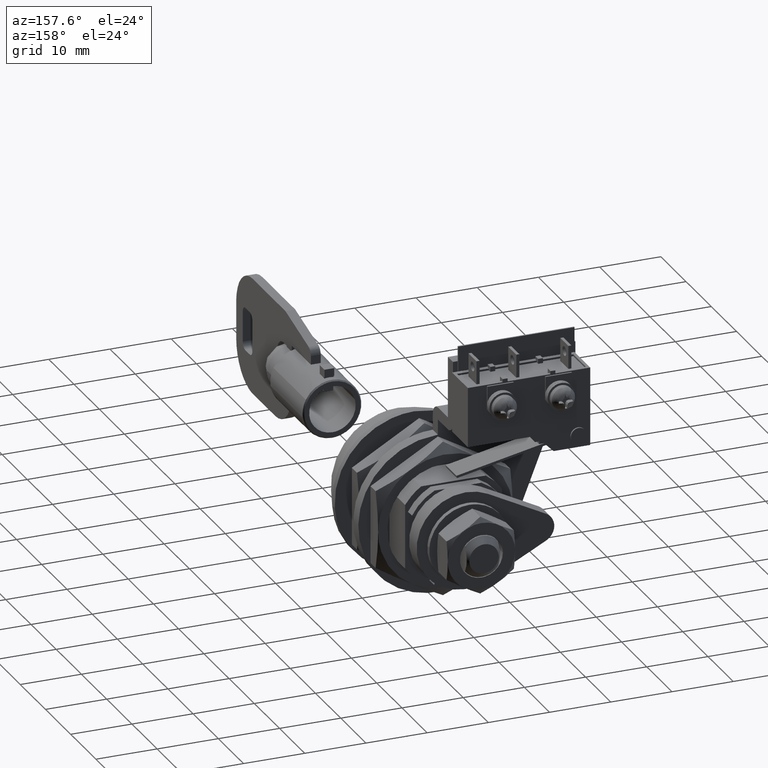
[diagram: clean part render]
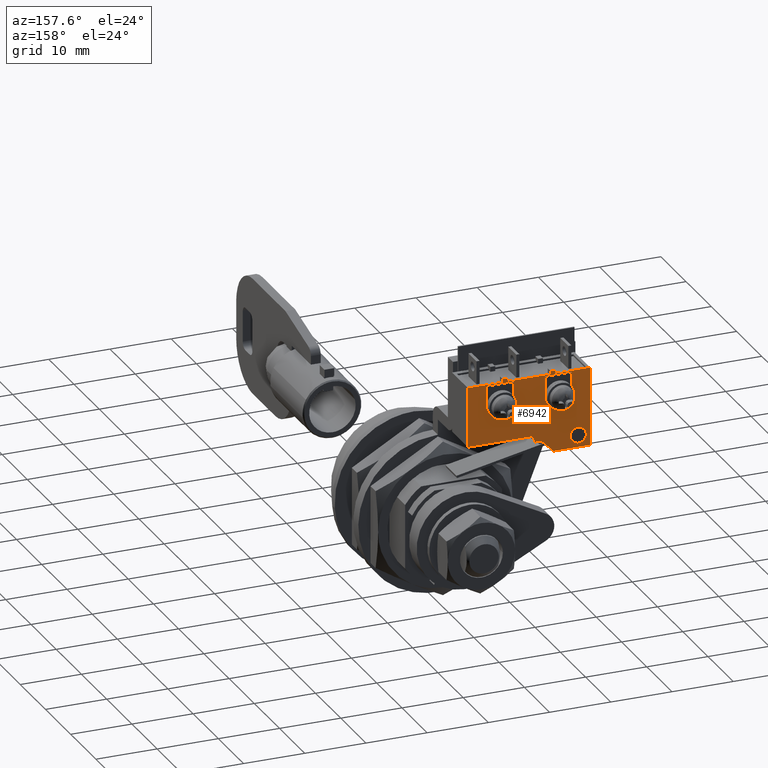
[diagram: same view with one face highlighted and labeled with its STEP entity id]
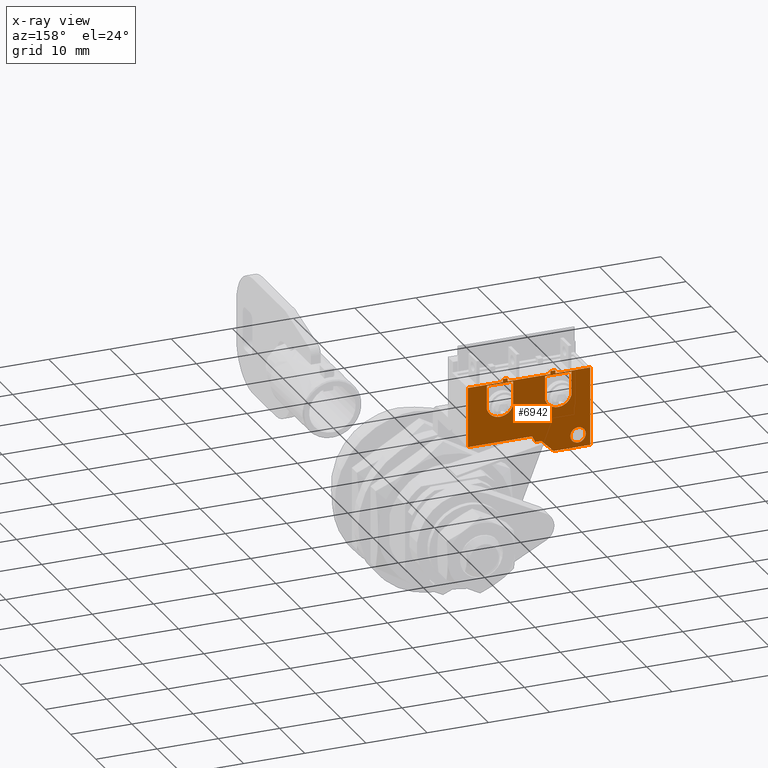
[diagram: x-ray of the same camera — body ghosted, the highlighted face saturated]
A machine part, auxiliary view. The second image highlights one B-rep face of the part: STEP entity #6942.
The next image is the same camera in x-ray: the body ghosted, the highlighted face saturated — about 0% of this face is hidden behind the body in this view.
In plain terms, the highlighted face is a freeform B-spline surface patch.
Its self-contained STEP definition (entity closure, byte-faithful):
#4171=CARTESIAN_POINT('',(28.199994000000199,16.503853332892142,15.198063870403709));
#4172=VERTEX_POINT('',#4171);
#4178=CARTESIAN_POINT('',(28.199994000000199,17.750000000000000,13.849990000000000));
#4179=VERTEX_POINT('',#4178);
#4180=CARTESIAN_POINT('',(28.199994000000203,16.503853332892135,15.198063870403713));
#4181=CARTESIAN_POINT('',(28.199994000000192,16.499999999999993,15.149102634506940));
#4182=CARTESIAN_POINT('',(28.199994000000199,16.500000000000000,15.099990000000000));
#4183=CARTESIAN_POINT('',(28.199994000000206,16.499999999999993,13.849990000000004));
#4184=CARTESIAN_POINT('',(28.199994000000199,17.750000000000000,13.849990000000000));
#4192=(BOUNDED_CURVE()B_SPLINE_CURVE(2,(#4180,#4181,#4182,#4183,#4184),.UNSPECIFIED.,.F.,.U.)B_SPLINE_CURVE_WITH_KNOTS((3,2,3),(0.736331300428100,0.750000000000000,1.0),.UNSPECIFIED.)CURVE()GEOMETRIC_REPRESENTATION_ITEM()RATIONAL_B_SPLINE_CURVE((0.969723355744691,0.983986122341568,1.0,0.707106781186548,1.0))REPRESENTATION_ITEM(''));
#4193=EDGE_CURVE('',#4172,#4179,#4192,.T.);
#4195=CARTESIAN_POINT('',(28.199994000000199,18.996146667107869,15.001916129596291));
#4196=VERTEX_POINT('',#4195);
#4197=CARTESIAN_POINT('',(28.199994000000199,17.750000000000000,13.849990000000000));
#4198=CARTESIAN_POINT('',(28.199994000000199,18.905488113188923,13.849990000000007));
#4199=CARTESIAN_POINT('',(28.199994000000203,18.996146667107865,15.001916129596294));
#4207=(BOUNDED_CURVE()B_SPLINE_CURVE(2,(#4197,#4198,#4199),.UNSPECIFIED.,.F.,.U.)B_SPLINE_CURVE_WITH_KNOTS((3,3),(0.0,0.236331300428100),.UNSPECIFIED.)CURVE()GEOMETRIC_REPRESENTATION_ITEM()RATIONAL_B_SPLINE_CURVE((1.0,0.723120658844979,0.969723355744691))REPRESENTATION_ITEM(''));
#4208=EDGE_CURVE('',#4179,#4196,#4207,.T.);
#4254=CARTESIAN_POINT('',(28.199994000000199,17.750000000000000,16.349989999999998));
#4255=VERTEX_POINT('',#4254);
#4256=CARTESIAN_POINT('',(28.199994000000199,18.996146667107869,15.001916129596296));
#4257=CARTESIAN_POINT('',(28.199994000000206,19.000000000000007,15.050877365493058));
#4258=CARTESIAN_POINT('',(28.199994000000199,19.0,15.099990000000000));
#4259=CARTESIAN_POINT('',(28.199994000000206,18.999999999999993,16.349989999999998));
#4260=CARTESIAN_POINT('',(28.199994000000199,17.750000000000000,16.349989999999998));
#4268=(BOUNDED_CURVE()B_SPLINE_CURVE(2,(#4256,#4257,#4258,#4259,#4260),.UNSPECIFIED.,.F.,.U.)B_SPLINE_CURVE_WITH_KNOTS((3,2,3),(0.236331300428100,0.250000000000000,0.500000000000000),.UNSPECIFIED.)CURVE()GEOMETRIC_REPRESENTATION_ITEM()RATIONAL_B_SPLINE_CURVE((0.969723355744690,0.983986122341568,1.0,0.707106781186548,1.0))REPRESENTATION_ITEM(''));
#4269=EDGE_CURVE('',#4196,#4255,#4268,.T.);
#4271=CARTESIAN_POINT('',(28.199994000000199,17.750000000000000,16.349989999999998));
#4272=CARTESIAN_POINT('',(28.199994000000196,16.594511886811066,16.349990000000009));
#4273=CARTESIAN_POINT('',(28.199994000000196,16.503853332892135,15.198063870403706));
#4281=(BOUNDED_CURVE()B_SPLINE_CURVE(2,(#4271,#4272,#4273),.UNSPECIFIED.,.F.,.U.)B_SPLINE_CURVE_WITH_KNOTS((3,3),(0.500000000000000,0.736331300428099),.UNSPECIFIED.)CURVE()GEOMETRIC_REPRESENTATION_ITEM()RATIONAL_B_SPLINE_CURVE((1.0,0.723120658844981,0.969723355744688))REPRESENTATION_ITEM(''));
#4282=EDGE_CURVE('',#4255,#4172,#4281,.T.);
#4917=CARTESIAN_POINT('',(28.199994000000100,7.149993999999910,21.836594594759351));
#4918=VERTEX_POINT('',#4917);
#4924=CARTESIAN_POINT('',(28.199994000000050,7.149993999999910,25.699997000000099));
#4925=VERTEX_POINT('',#4924);
#4926=CARTESIAN_POINT('',(28.199994000000100,7.149993999999910,21.836594594759351));
#4927=CARTESIAN_POINT('',(28.199994000000050,7.149993999999910,25.699997000000099));
#4928=QUASI_UNIFORM_CURVE('',1,(#4926,#4927),.UNSPECIFIED.,.F.,.U.);
#4929=EDGE_CURVE('',#4918,#4925,#4928,.T.);
#4958=CARTESIAN_POINT('',(28.199994000000050,2.850005999999895,21.836594594759450));
#4959=VERTEX_POINT('',#4958);
#4965=CARTESIAN_POINT('',(28.199994000000050,2.850005999999905,21.836594594759450));
#4966=CARTESIAN_POINT('',(28.199994000000054,3.339541836763770,20.249939000000005));
#4967=CARTESIAN_POINT('',(28.199994000000050,4.999999999999920,20.249939000000001));
#4968=CARTESIAN_POINT('',(28.199994000000054,6.660458163235989,20.249939000000005));
#4969=CARTESIAN_POINT('',(28.199994000000050,7.149993999999904,21.836594594759351));
#4977=(BOUNDED_CURVE()B_SPLINE_CURVE(2,(#4965,#4966,#4967,#4968,#4969),.UNSPECIFIED.,.F.,.U.)B_SPLINE_CURVE_WITH_KNOTS((3,2,3),(0.0,0.500000000000000,1.0),.UNSPECIFIED.)CURVE()GEOMETRIC_REPRESENTATION_ITEM()RATIONAL_B_SPLINE_CURVE((1.0,0.804617839617811,1.0,0.804617839617811,1.0))REPRESENTATION_ITEM(''));
#4978=EDGE_CURVE('',#4959,#4918,#4977,.T.);
#4990=CARTESIAN_POINT('',(28.199994000000100,2.850005999999895,25.699997000000099));
#4991=VERTEX_POINT('',#4990);
#4997=CARTESIAN_POINT('',(28.199994000000100,2.850005999999895,25.699997000000099));
#4998=CARTESIAN_POINT('',(28.199994000000050,2.850005999999895,21.836594594759450));
#4999=QUASI_UNIFORM_CURVE('',1,(#4997,#4998),.UNSPECIFIED.,.F.,.U.);
#5000=EDGE_CURVE('',#4991,#4959,#4999,.T.);
#5013=CARTESIAN_POINT('',(28.199994000000050,7.149993999999910,25.699997000000099));
#5014=CARTESIAN_POINT('',(28.199994000000100,2.850005999999895,25.699997000000099));
#5015=QUASI_UNIFORM_CURVE('',1,(#5013,#5014),.UNSPECIFIED.,.F.,.U.);
#5016=EDGE_CURVE('',#4925,#4991,#5015,.T.);
#5080=CARTESIAN_POINT('',(28.199994000000100,16.649993999999900,21.836594594759049));
#5081=VERTEX_POINT('',#5080);
#5087=CARTESIAN_POINT('',(28.199994000000050,16.649993999999900,25.699997000000099));
#5088=VERTEX_POINT('',#5087);
#5089=CARTESIAN_POINT('',(28.199994000000100,16.649993999999900,21.836594594759049));
#5090=CARTESIAN_POINT('',(28.199994000000050,16.649993999999900,25.699997000000099));
#5091=QUASI_UNIFORM_CURVE('',1,(#5089,#5090),.UNSPECIFIED.,.F.,.U.);
#5092=EDGE_CURVE('',#5081,#5088,#5091,.T.);
#5121=CARTESIAN_POINT('',(28.199994000000050,12.350006000000000,21.836594594759351));
#5122=VERTEX_POINT('',#5121);
#5128=CARTESIAN_POINT('',(28.199994000000050,12.350006000000020,21.836594594759362));
#5129=CARTESIAN_POINT('',(28.199994000000046,12.839541836763932,20.249939000000005));
#5130=CARTESIAN_POINT('',(28.199994000000050,14.500000000000000,20.249939000000001));
#5131=CARTESIAN_POINT('',(28.199994000000046,16.160458163235830,20.249939000000005));
#5132=CARTESIAN_POINT('',(28.199994000000050,16.649993999999889,21.836594594759049));
#5140=(BOUNDED_CURVE()B_SPLINE_CURVE(2,(#5128,#5129,#5130,#5131,#5132),.UNSPECIFIED.,.F.,.U.)B_SPLINE_CURVE_WITH_KNOTS((3,2,3),(0.0,0.500000000000000,1.0),.UNSPECIFIED.)CURVE()GEOMETRIC_REPRESENTATION_ITEM()RATIONAL_B_SPLINE_CURVE((1.0,0.804617839617824,1.0,0.804617839617824,1.0))REPRESENTATION_ITEM(''));
#5141=EDGE_CURVE('',#5122,#5081,#5140,.T.);
#5153=CARTESIAN_POINT('',(28.199994000000100,12.350006000000000,25.699997000000099));
#5154=VERTEX_POINT('',#5153);
#5160=CARTESIAN_POINT('',(28.199994000000100,12.350006000000000,25.699997000000099));
#5161=CARTESIAN_POINT('',(28.199994000000050,12.350006000000000,21.836594594759351));
#5162=QUASI_UNIFORM_CURVE('',1,(#5160,#5161),.UNSPECIFIED.,.F.,.U.);
#5163=EDGE_CURVE('',#5154,#5122,#5162,.T.);
#5176=CARTESIAN_POINT('',(28.199994000000050,16.649993999999900,25.699997000000099));
#5177=CARTESIAN_POINT('',(28.199994000000100,12.350006000000000,25.699997000000099));
#5178=QUASI_UNIFORM_CURVE('',1,(#5176,#5177),.UNSPECIFIED.,.F.,.U.);
#5179=EDGE_CURVE('',#5088,#5154,#5178,.T.);
#5982=CARTESIAN_POINT('',(28.199994000000100,13.250000000000000,26.399992999999998));
#5983=VERTEX_POINT('',#5982);
#5989=CARTESIAN_POINT('',(28.199994000000100,14.050017999999939,26.399992999999998));
#5990=VERTEX_POINT('',#5989);
#5991=CARTESIAN_POINT('',(28.199994000000100,14.050017999999939,26.399992999999998));
#5992=CARTESIAN_POINT('',(28.199994000000100,13.250000000000000,26.399992999999998));
#5993=QUASI_UNIFORM_CURVE('',1,(#5991,#5992),.UNSPECIFIED.,.F.,.U.);
#5994=EDGE_CURVE('',#5990,#5983,#5993,.T.);
#6019=CARTESIAN_POINT('',(28.199994000000100,13.250000000000000,25.899993000000102));
#6020=VERTEX_POINT('',#6019);
#6026=CARTESIAN_POINT('',(28.199994000000100,13.250000000000000,26.399992999999998));
#6027=CARTESIAN_POINT('',(28.199994000000100,13.250000000000000,25.899993000000102));
#6028=QUASI_UNIFORM_CURVE('',1,(#6026,#6027),.UNSPECIFIED.,.F.,.U.);
#6029=EDGE_CURVE('',#5983,#6020,#6028,.T.);
#6048=CARTESIAN_POINT('',(28.199994000000100,14.050017999999939,25.899993000000102));
#6049=VERTEX_POINT('',#6048);
#6069=CARTESIAN_POINT('',(28.199994000000100,14.050017999999939,26.399992999999998));
#6070=CARTESIAN_POINT('',(28.199994000000100,14.050017999999939,25.899993000000102));
#6071=QUASI_UNIFORM_CURVE('',1,(#6069,#6070),.UNSPECIFIED.,.F.,.U.);
#6072=EDGE_CURVE('',#5990,#6049,#6071,.T.);
#6270=CARTESIAN_POINT('',(28.199994000000100,5.449982000000000,26.399992999999998));
#6271=VERTEX_POINT('',#6270);
#6277=CARTESIAN_POINT('',(28.199994000000100,6.250000000000000,26.399992999999998));
#6278=VERTEX_POINT('',#6277);
#6279=CARTESIAN_POINT('',(28.199994000000100,6.250000000000000,26.399992999999998));
#6280=CARTESIAN_POINT('',(28.199994000000100,5.449982000000000,26.399992999999998));
#6281=QUASI_UNIFORM_CURVE('',1,(#6279,#6280),.UNSPECIFIED.,.F.,.U.);
#6282=EDGE_CURVE('',#6278,#6271,#6281,.T.);
#6307=CARTESIAN_POINT('',(28.199994000000050,5.449982000000000,25.899993000000102));
#6308=VERTEX_POINT('',#6307);
#6314=CARTESIAN_POINT('',(28.199994000000100,5.449982000000000,26.399992999999998));
#6315=CARTESIAN_POINT('',(28.199994000000050,5.449982000000000,25.899993000000102));
#6316=QUASI_UNIFORM_CURVE('',1,(#6314,#6315),.UNSPECIFIED.,.F.,.U.);
#6317=EDGE_CURVE('',#6271,#6308,#6316,.T.);
#6336=CARTESIAN_POINT('',(28.199994000000050,6.250000000000000,25.899993000000102));
#6337=VERTEX_POINT('',#6336);
#6357=CARTESIAN_POINT('',(28.199994000000100,6.250000000000000,26.399992999999998));
#6358=CARTESIAN_POINT('',(28.199994000000050,6.250000000000000,25.899993000000102));
#6359=QUASI_UNIFORM_CURVE('',1,(#6357,#6358),.UNSPECIFIED.,.F.,.U.);
#6360=EDGE_CURVE('',#6278,#6337,#6359,.T.);
#6559=CARTESIAN_POINT('',(28.199994000000050,19.750000000000000,25.899993000000102));
#6560=VERTEX_POINT('',#6559);
#6566=CARTESIAN_POINT('',(28.199994000000050,19.750000000000000,13.099990000000000));
#6567=VERTEX_POINT('',#6566);
#6568=CARTESIAN_POINT('',(28.199994000000050,19.750000000000000,13.099990000000000));
#6569=CARTESIAN_POINT('',(28.199994000000050,19.750000000000000,25.899993000000102));
#6570=QUASI_UNIFORM_CURVE('',1,(#6568,#6569),.UNSPECIFIED.,.F.,.U.);
#6571=EDGE_CURVE('',#6567,#6560,#6570,.T.);
#6588=CARTESIAN_POINT('',(28.199994000000050,13.750047000248101,13.099990000000000));
#6589=VERTEX_POINT('',#6588);
#6590=CARTESIAN_POINT('',(28.199994000000050,13.750047000248101,13.099990000000000));
#6591=CARTESIAN_POINT('',(28.199994000000050,19.750000000000000,13.099990000000000));
#6592=QUASI_UNIFORM_CURVE('',1,(#6590,#6591),.UNSPECIFIED.,.F.,.U.);
#6593=EDGE_CURVE('',#6589,#6567,#6592,.T.);
#6614=CARTESIAN_POINT('',(28.199994000000050,11.750016000248120,15.099990000000000));
#6615=VERTEX_POINT('',#6614);
#6621=CARTESIAN_POINT('',(28.199994000000050,10.750000000000000,15.099990000000000));
#6622=VERTEX_POINT('',#6621);
#6623=CARTESIAN_POINT('',(28.199994000000050,10.750000000000000,15.099990000000000));
#6624=CARTESIAN_POINT('',(28.199994000000050,11.750016000248120,15.099990000000000));
#6625=QUASI_UNIFORM_CURVE('',1,(#6623,#6624),.UNSPECIFIED.,.F.,.U.);
#6626=EDGE_CURVE('',#6622,#6615,#6625,.T.);
#6644=CARTESIAN_POINT('',(28.199994000000050,10.250000000000000,16.099989999999998));
#6645=VERTEX_POINT('',#6644);
#6646=CARTESIAN_POINT('',(28.199994000000050,10.250000000000000,16.099989999999998));
#6647=CARTESIAN_POINT('',(28.199994000000050,10.750000000000000,15.099990000000000));
#6648=QUASI_UNIFORM_CURVE('',1,(#6646,#6647),.UNSPECIFIED.,.F.,.U.);
#6649=EDGE_CURVE('',#6645,#6622,#6648,.T.);
#6666=CARTESIAN_POINT('',(28.199994000000050,-0.250000000000000,16.099989999999998));
#6667=VERTEX_POINT('',#6666);
#6668=CARTESIAN_POINT('',(28.199994000000050,-0.250000000000000,16.099989999999998));
#6669=CARTESIAN_POINT('',(28.199994000000050,10.250000000000000,16.099989999999998));
#6670=QUASI_UNIFORM_CURVE('',1,(#6668,#6669),.UNSPECIFIED.,.F.,.U.);
#6671=EDGE_CURVE('',#6667,#6645,#6670,.T.);
#6688=CARTESIAN_POINT('',(28.199994000000050,-0.250000000000000,25.899993000000102));
#6689=VERTEX_POINT('',#6688);
#6690=CARTESIAN_POINT('',(28.199994000000050,-0.250000000000000,25.899993000000102));
#6691=CARTESIAN_POINT('',(28.199994000000050,-0.250000000000000,16.099989999999998));
#6692=QUASI_UNIFORM_CURVE('',1,(#6690,#6691),.UNSPECIFIED.,.F.,.U.);
#6693=EDGE_CURVE('',#6689,#6667,#6692,.T.);
#6771=CARTESIAN_POINT('',(28.199994000000100,13.250000000000000,25.899993000000102));
#6772=CARTESIAN_POINT('',(28.199994000000050,6.250000000000000,25.899993000000102));
#6773=QUASI_UNIFORM_CURVE('',1,(#6771,#6772),.UNSPECIFIED.,.F.,.U.);
#6774=EDGE_CURVE('',#6020,#6337,#6773,.T.);
#6809=CARTESIAN_POINT('',(28.199994000000050,19.750000000000000,25.899993000000102));
#6810=CARTESIAN_POINT('',(28.199994000000100,14.050017999999939,25.899993000000102));
#6811=QUASI_UNIFORM_CURVE('',1,(#6809,#6810),.UNSPECIFIED.,.F.,.U.);
#6812=EDGE_CURVE('',#6560,#6049,#6811,.T.);
#6817=CARTESIAN_POINT('',(28.199994000000050,5.449982000000000,25.899993000000102));
#6818=CARTESIAN_POINT('',(28.199994000000050,-0.250000000000000,25.899993000000102));
#6819=QUASI_UNIFORM_CURVE('',1,(#6817,#6818),.UNSPECIFIED.,.F.,.U.);
#6820=EDGE_CURVE('',#6308,#6689,#6819,.T.);
#6892=CARTESIAN_POINT('',(28.199994000000050,11.750016000248120,15.099990000000000));
#6893=CARTESIAN_POINT('',(28.199994000000050,13.750047000248101,13.099990000000000));
#6894=QUASI_UNIFORM_CURVE('',1,(#6892,#6893),.UNSPECIFIED.,.F.,.U.);
#6895=EDGE_CURVE('',#6615,#6589,#6894,.T.);
#6901=CARTESIAN_POINT('',(28.199994000000100,-1.248999961236120,27.064329122879322));
#6902=CARTESIAN_POINT('',(28.199994000000100,20.749000497677919,27.064329122879322));
#6903=CARTESIAN_POINT('',(28.199994000000100,-1.248999961236120,12.435654471677161));
#6904=CARTESIAN_POINT('',(28.199994000000100,20.749000497677919,12.435654471677161));
#6905=B_SPLINE_SURFACE_WITH_KNOTS('',1,1,((#6901,#6903),(#6902,#6904)),.UNSPECIFIED.,.F.,.F.,.U.,(2,2),(2,2),(0.0,21.998000458914039),(0.0,14.628674651202161),.UNSPECIFIED.);
#6906=ORIENTED_EDGE('',*,*,#6812,.T.);
#6907=ORIENTED_EDGE('',*,*,#6072,.F.);
#6908=ORIENTED_EDGE('',*,*,#5994,.T.);
#6909=ORIENTED_EDGE('',*,*,#6029,.T.);
#6910=ORIENTED_EDGE('',*,*,#6774,.T.);
#6911=ORIENTED_EDGE('',*,*,#6360,.F.);
#6912=ORIENTED_EDGE('',*,*,#6282,.T.);
#6913=ORIENTED_EDGE('',*,*,#6317,.T.);
#6914=ORIENTED_EDGE('',*,*,#6820,.T.);
#6915=ORIENTED_EDGE('',*,*,#6693,.T.);
#6916=ORIENTED_EDGE('',*,*,#6671,.T.);
#6917=ORIENTED_EDGE('',*,*,#6649,.T.);
#6918=ORIENTED_EDGE('',*,*,#6626,.T.);
#6919=ORIENTED_EDGE('',*,*,#6895,.T.);
#6920=ORIENTED_EDGE('',*,*,#6593,.T.);
#6921=ORIENTED_EDGE('',*,*,#6571,.T.);
#6922=EDGE_LOOP('',(#6906,#6907,#6908,#6909,#6910,#6911,#6912,#6913,#6914,#6915,#6916,#6917,#6918,#6919,#6920,#6921));
#6923=FACE_OUTER_BOUND('',#6922,.T.);
#6924=ORIENTED_EDGE('',*,*,#5179,.F.);
#6925=ORIENTED_EDGE('',*,*,#5092,.F.);
#6926=ORIENTED_EDGE('',*,*,#5141,.F.);
#6927=ORIENTED_EDGE('',*,*,#5163,.F.);
#6928=EDGE_LOOP('',(#6924,#6925,#6926,#6927));
#6929=FACE_BOUND('',#6928,.T.);
#6930=ORIENTED_EDGE('',*,*,#5016,.F.);
#6931=ORIENTED_EDGE('',*,*,#4929,.F.);
#6932=ORIENTED_EDGE('',*,*,#4978,.F.);
#6933=ORIENTED_EDGE('',*,*,#5000,.F.);
#6934=EDGE_LOOP('',(#6930,#6931,#6932,#6933));
#6935=FACE_BOUND('',#6934,.T.);
#6936=ORIENTED_EDGE('',*,*,#4282,.F.);
#6937=ORIENTED_EDGE('',*,*,#4269,.F.);
#6938=ORIENTED_EDGE('',*,*,#4208,.F.);
#6939=ORIENTED_EDGE('',*,*,#4193,.F.);
#6940=EDGE_LOOP('',(#6936,#6937,#6938,#6939));
#6941=FACE_BOUND('',#6940,.T.);
#6942=ADVANCED_FACE('',(#6923,#6929,#6935,#6941),#6905,.F.);